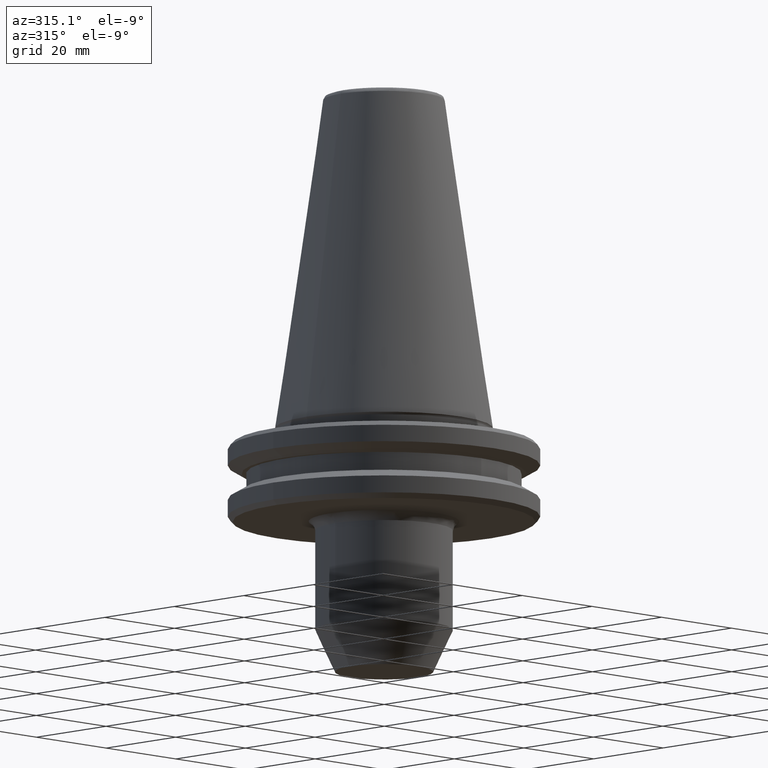
[diagram: clean part render]
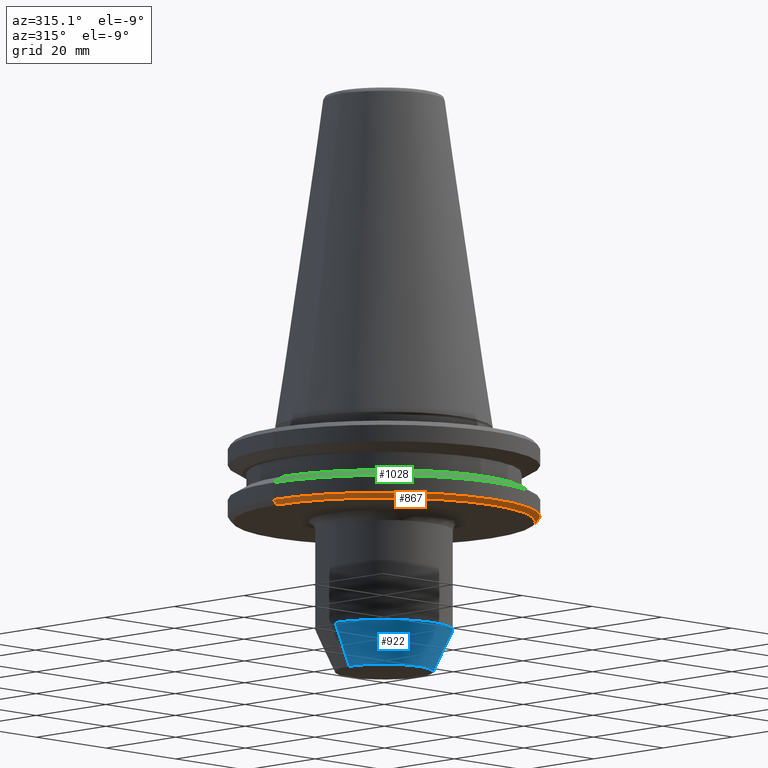
[diagram: same view with three faces highlighted in distinct colors, each labeled with its STEP entity id]
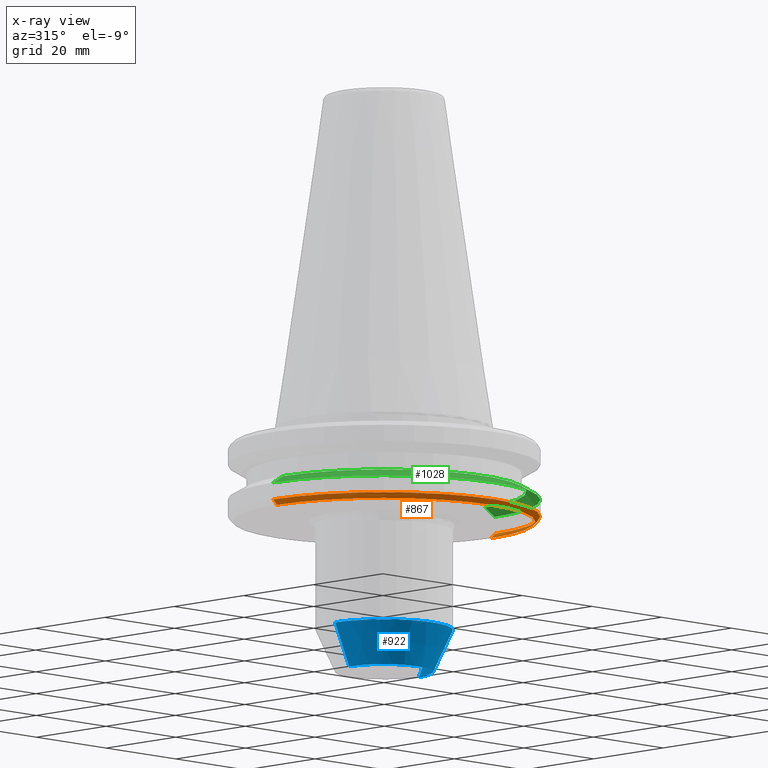
[diagram: x-ray of the same camera — body ghosted, the three highlighted faces saturated]
A machine part, auxiliary view with three faces highlighted in distinct colors.
The next image is the same camera in x-ray (body ghosted, the three faces saturated) — at least one of them is partly hidden behind the body in this view.
Their STEP definitions:

[orange] entity #867 — the highlighted conical surface has half-angle 45 deg.
#66 = VERTEX_POINT ( 'NONE', #1323 ) ;
#92 = CARTESIAN_POINT ( 'NONE',  ( 30.75000000000072100, 0.0000000000000000000, -19.10000000000006200 ) ) ;
#148 = VECTOR ( 'NONE', #1251, 1000.000000000000000 ) ;
#195 = LINE ( 'NONE', #1246, #148 ) ;
#221 = DIRECTION ( 'NONE',  ( 1.000000000000000000, 0.0000000000000000000, 0.0000000000000000000 ) ) ;
#223 = CARTESIAN_POINT ( 'NONE',  ( 0.0000000000000000000, 0.0000000000000000000, -18.21715728750686500 ) ) ;
#225 = DIRECTION ( 'NONE',  ( 0.0000000000000000000, -0.0000000000000000000, 1.000000000000000000 ) ) ;
#249 = LINE ( 'NONE', #1216, #1278 ) ;
#290 = AXIS2_PLACEMENT_3D ( 'NONE', #223, #225, #221 ) ;
#305 = EDGE_CURVE ( 'NONE', #1342, #66, #195, .T. ) ;
#325 = DIRECTION ( 'NONE',  ( -0.0000000000000000000, -0.0000000000000000000, 1.000000000000000000 ) ) ;
#366 = DIRECTION ( 'NONE',  ( 0.7071067811865506800, 0.0000000000000000000, 0.7071067811865443500 ) ) ;
#373 = CARTESIAN_POINT ( 'NONE',  ( -30.75000000000072100, 3.827021247335525400E-015, -19.10000000000006200 ) ) ;
#414 = AXIS2_PLACEMENT_3D ( 'NONE', #981, #325, #1102 ) ;
#586 = CARTESIAN_POINT ( 'NONE',  ( 0.0000000000000000000, 0.0000000000000000000, -19.10000000000006200 ) ) ;
#592 = AXIS2_PLACEMENT_3D ( 'NONE', #586, #1309, #685 ) ;
#676 = CONICAL_SURFACE ( 'NONE', #290, 31.63284271249314400, 0.7853981633974528300 ) ;
#685 = DIRECTION ( 'NONE',  ( 1.000000000000000000, 0.0000000000000000000, 0.0000000000000000000 ) ) ;
#699 = ORIENTED_EDGE ( 'NONE', *, *, #305, .F. ) ;
#716 = ORIENTED_EDGE ( 'NONE', *, *, #1238, .T. ) ;
#733 = ORIENTED_EDGE ( 'NONE', *, *, #1304, .T. ) ;
#754 = ORIENTED_EDGE ( 'NONE', *, *, #1070, .F. ) ;
#792 = FACE_OUTER_BOUND ( 'NONE', #1317, .T. ) ;
#867 = ADVANCED_FACE ( 'NONE', ( #792 ), #676, .T. ) ;
#888 = CARTESIAN_POINT ( 'NONE',  ( 31.75000000000005700, 0.0000000000000000000, -18.10000000000066900 ) ) ;
#942 = CIRCLE ( 'NONE', #592, 30.75000000000072100 ) ;
#953 = VERTEX_POINT ( 'NONE', #92 ) ;
#981 = CARTESIAN_POINT ( 'NONE',  ( 0.0000000000000000000, 0.0000000000000000000, -18.10000000000066900 ) ) ;
#1065 = CIRCLE ( 'NONE', #414, 31.75000000000005700 ) ;
#1070 = EDGE_CURVE ( 'NONE', #66, #1207, #1065, .T. ) ;
#1102 = DIRECTION ( 'NONE',  ( 1.000000000000000000, 0.0000000000000000000, 0.0000000000000000000 ) ) ;
#1207 = VERTEX_POINT ( 'NONE', #888 ) ;
#1216 = CARTESIAN_POINT ( 'NONE',  ( 31.63284271249314400, 0.0000000000000000000, -18.21715728750686500 ) ) ;
#1238 = EDGE_CURVE ( 'NONE', #1342, #953, #942, .T. ) ;
#1246 = CARTESIAN_POINT ( 'NONE',  ( -31.63284271249314400, 3.873905957578640200E-015, -18.21715728750686500 ) ) ;
#1251 = DIRECTION ( 'NONE',  ( -0.7071067811865506800, 8.659560562354971100E-017, 0.7071067811865443500 ) ) ;
#1278 = VECTOR ( 'NONE', #366, 1000.000000000000000 ) ;
#1304 = EDGE_CURVE ( 'NONE', #953, #1207, #249, .T. ) ;
#1309 = DIRECTION ( 'NONE',  ( -0.0000000000000000000, -0.0000000000000000000, 1.000000000000000000 ) ) ;
#1317 = EDGE_LOOP ( 'NONE', ( #699, #716, #733, #754 ) ) ;
#1323 = CARTESIAN_POINT ( 'NONE',  ( -31.75000000000005700, 3.888253587292853600E-015, -18.10000000000066900 ) ) ;
#1342 = VERTEX_POINT ( 'NONE', #373 ) ;

[blue] entity #922 — the highlighted conical surface has half-angle 25 deg.
#98 = VECTOR ( 'NONE', #1174, 1000.000000000000100 ) ;
#113 = CIRCLE ( 'NONE', #849, 14.00000000000000000 ) ;
#122 = CARTESIAN_POINT ( 'NONE',  ( -9.999999999999980500, 1.469576158976822600E-015, -50.00000000000004300 ) ) ;
#129 = LINE ( 'NONE', #1170, #98 ) ;
#142 = DIRECTION ( 'NONE',  ( 0.0000000000000000000, -0.0000000000000000000, 1.000000000000000000 ) ) ;
#144 = CARTESIAN_POINT ( 'NONE',  ( 0.0000000000000000000, 0.0000000000000000000, -41.42197231800000900 ) ) ;
#183 = DIRECTION ( 'NONE',  ( 1.000000000000000000, 0.0000000000000000000, 0.0000000000000000000 ) ) ;
#356 = DIRECTION ( 'NONE',  ( 0.0000000000000000000, -0.0000000000000000000, 1.000000000000000000 ) ) ;
#409 = CONICAL_SURFACE ( 'NONE', #1177, 13.99999999999999800, 0.4363323130002897400 ) ;
#464 = EDGE_CURVE ( 'NONE', #1286, #1084, #129, .T. ) ;
#521 = VERTEX_POINT ( 'NONE', #746 ) ;
#525 = EDGE_CURVE ( 'NONE', #521, #1084, #113, .T. ) ;
#551 = AXIS2_PLACEMENT_3D ( 'NONE', #1013, #356, #1127 ) ;
#558 = VECTOR ( 'NONE', #999, 1000.000000000000100 ) ;
#647 = CIRCLE ( 'NONE', #551, 9.999999999999980500 ) ;
#671 = CARTESIAN_POINT ( 'NONE',  ( -13.99999999999999800, 1.714505518806294400E-015, -41.42197231800000900 ) ) ;
#691 = LINE ( 'NONE', #671, #558 ) ;
#717 = DIRECTION ( 'NONE',  ( 1.000000000000000000, 0.0000000000000000000, 0.0000000000000000000 ) ) ;
#721 = DIRECTION ( 'NONE',  ( 0.0000000000000000000, 0.0000000000000000000, 1.000000000000000000 ) ) ;
#724 = CARTESIAN_POINT ( 'NONE',  ( 0.0000000000000000000, 0.0000000000000000000, -41.42197231800001600 ) ) ;
#746 = CARTESIAN_POINT ( 'NONE',  ( -13.99999999999999500, 1.714505518806294000E-015, -41.42197231800001600 ) ) ;
#776 = EDGE_LOOP ( 'NONE', ( #917, #1142, #812, #1243 ) ) ;
#789 = FACE_OUTER_BOUND ( 'NONE', #776, .T. ) ;
#793 = CARTESIAN_POINT ( 'NONE',  ( 9.999999999999980500, 0.0000000000000000000, -50.00000000000004300 ) ) ;
#812 = ORIENTED_EDGE ( 'NONE', *, *, #464, .T. ) ;
#849 = AXIS2_PLACEMENT_3D ( 'NONE', #724, #721, #717 ) ;
#865 = CARTESIAN_POINT ( 'NONE',  ( 13.99999999999999500, 0.0000000000000000000, -41.42197231800001600 ) ) ;
#917 = ORIENTED_EDGE ( 'NONE', *, *, #1176, .F. ) ;
#922 = ADVANCED_FACE ( 'NONE', ( #789 ), #409, .T. ) ;
#999 = DIRECTION ( 'NONE',  ( -0.4226182617422467600, 5.175581015038608100E-017, 0.9063077870359282900 ) ) ;
#1013 = CARTESIAN_POINT ( 'NONE',  ( 0.0000000000000000000, 0.0000000000000000000, -50.00000000000004300 ) ) ;
#1082 = VERTEX_POINT ( 'NONE', #122 ) ;
#1084 = VERTEX_POINT ( 'NONE', #865 ) ;
#1127 = DIRECTION ( 'NONE',  ( 1.000000000000000000, 0.0000000000000000000, 0.0000000000000000000 ) ) ;
#1142 = ORIENTED_EDGE ( 'NONE', *, *, #1232, .T. ) ;
#1170 = CARTESIAN_POINT ( 'NONE',  ( 13.99999999999999800, 0.0000000000000000000, -41.42197231800000900 ) ) ;
#1174 = DIRECTION ( 'NONE',  ( 0.4226182617422467600, 0.0000000000000000000, 0.9063077870359282900 ) ) ;
#1176 = EDGE_CURVE ( 'NONE', #1082, #521, #691, .T. ) ;
#1177 = AXIS2_PLACEMENT_3D ( 'NONE', #144, #142, #183 ) ;
#1232 = EDGE_CURVE ( 'NONE', #1082, #1286, #647, .T. ) ;
#1243 = ORIENTED_EDGE ( 'NONE', *, *, #525, .F. ) ;
#1286 = VERTEX_POINT ( 'NONE', #793 ) ;

[green] entity #1028 — the highlighted conical surface has half-angle 60 deg.
#15 = DIRECTION ( 'NONE',  ( 1.000000000000000000, 0.0000000000000000000, 0.0000000000000000000 ) ) ;
#18 = DIRECTION ( 'NONE',  ( -0.0000000000000000000, -0.0000000000000000000, -1.000000000000000000 ) ) ;
#19 = CARTESIAN_POINT ( 'NONE',  ( 0.0000000000000000000, 0.0000000000000000000, -14.62183664194333400 ) ) ;
#68 = DIRECTION ( 'NONE',  ( 0.0000000000000000000, 0.0000000000000000000, -1.000000000000000000 ) ) ;
#128 = DIRECTION ( 'NONE',  ( 0.8660254038213651700, 1.060575238770128900E-016, -0.4999999999360413800 ) ) ;
#132 = CARTESIAN_POINT ( 'NONE',  ( 31.75000000012251200, 3.888253587307849800E-015, -14.62183664207073300 ) ) ;
#146 = AXIS2_PLACEMENT_3D ( 'NONE', #1346, #1048, #548 ) ;
#159 = CIRCLE ( 'NONE', #566, 31.75000000000000000 ) ;
#176 = CIRCLE ( 'NONE', #839, 28.94089653399999300 ) ;
#262 = CARTESIAN_POINT ( 'NONE',  ( 31.75000000000000000, 0.0000000000000000000, -14.62183664194333400 ) ) ;
#267 = ORIENTED_EDGE ( 'NONE', *, *, #1144, .T. ) ;
#340 = CARTESIAN_POINT ( 'NONE',  ( -28.94089653399999300, 0.0000000000000000000, -13.00000000000000000 ) ) ;
#548 = DIRECTION ( 'NONE',  ( -1.000000000000000000, 0.0000000000000000000, 0.0000000000000000000 ) ) ;
#553 = VERTEX_POINT ( 'NONE', #715 ) ;
#566 = AXIS2_PLACEMENT_3D ( 'NONE', #19, #18, #15 ) ;
#572 = DIRECTION ( 'NONE',  ( -0.8660254038213651700, 0.0000000000000000000, -0.4999999999360413800 ) ) ;
#577 = LINE ( 'NONE', #132, #1096 ) ;
#607 = CARTESIAN_POINT ( 'NONE',  ( 28.94089653399999300, 3.716245608907510900E-015, -13.00000000000000000 ) ) ;
#700 = CARTESIAN_POINT ( 'NONE',  ( 0.0000000000000000000, 0.0000000000000000000, -13.00000000000000000 ) ) ;
#715 = CARTESIAN_POINT ( 'NONE',  ( -31.75000000000000000, 3.888253587292846500E-015, -14.62183664194333400 ) ) ;
#738 = VECTOR ( 'NONE', #572, 1000.000000000000000 ) ;
#750 = VERTEX_POINT ( 'NONE', #607 ) ;
#791 = LINE ( 'NONE', #1295, #738 ) ;
#802 = DIRECTION ( 'NONE',  ( -1.000000000000000000, 0.0000000000000000000, 0.0000000000000000000 ) ) ;
#839 = AXIS2_PLACEMENT_3D ( 'NONE', #700, #68, #802 ) ;
#934 = EDGE_CURVE ( 'NONE', #750, #1349, #577, .T. ) ;
#984 = EDGE_CURVE ( 'NONE', #1349, #553, #159, .T. ) ;
#988 = ORIENTED_EDGE ( 'NONE', *, *, #1347, .T. ) ;
#1028 = ADVANCED_FACE ( 'NONE', ( #1300 ), #1206, .T. ) ;
#1048 = DIRECTION ( 'NONE',  ( 0.0000000000000000000, 0.0000000000000000000, -1.000000000000000000 ) ) ;
#1083 = EDGE_LOOP ( 'NONE', ( #1162, #988, #267, #1134 ) ) ;
#1096 = VECTOR ( 'NONE', #128, 1000.000000000000000 ) ;
#1134 = ORIENTED_EDGE ( 'NONE', *, *, #984, .F. ) ;
#1144 = EDGE_CURVE ( 'NONE', #1153, #553, #791, .T. ) ;
#1153 = VERTEX_POINT ( 'NONE', #340 ) ;
#1162 = ORIENTED_EDGE ( 'NONE', *, *, #934, .F. ) ;
#1206 = CONICAL_SURFACE ( 'NONE', #146, 31.75000000012251200, 1.047197551270450800 ) ;
#1295 = CARTESIAN_POINT ( 'NONE',  ( -31.75000000012251200, 0.0000000000000000000, -14.62183664207073300 ) ) ;
#1300 = FACE_OUTER_BOUND ( 'NONE', #1083, .T. ) ;
#1346 = CARTESIAN_POINT ( 'NONE',  ( 0.0000000000000000000, 0.0000000000000000000, -14.62183664207073300 ) ) ;
#1347 = EDGE_CURVE ( 'NONE', #750, #1153, #176, .T. ) ;
#1349 = VERTEX_POINT ( 'NONE', #262 ) ;